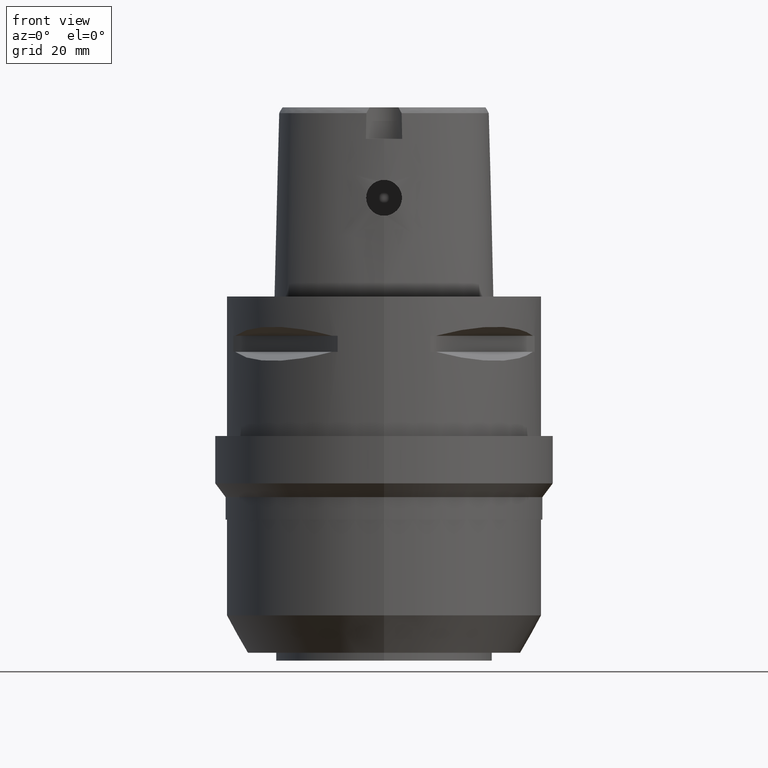
[diagram: clean part render]
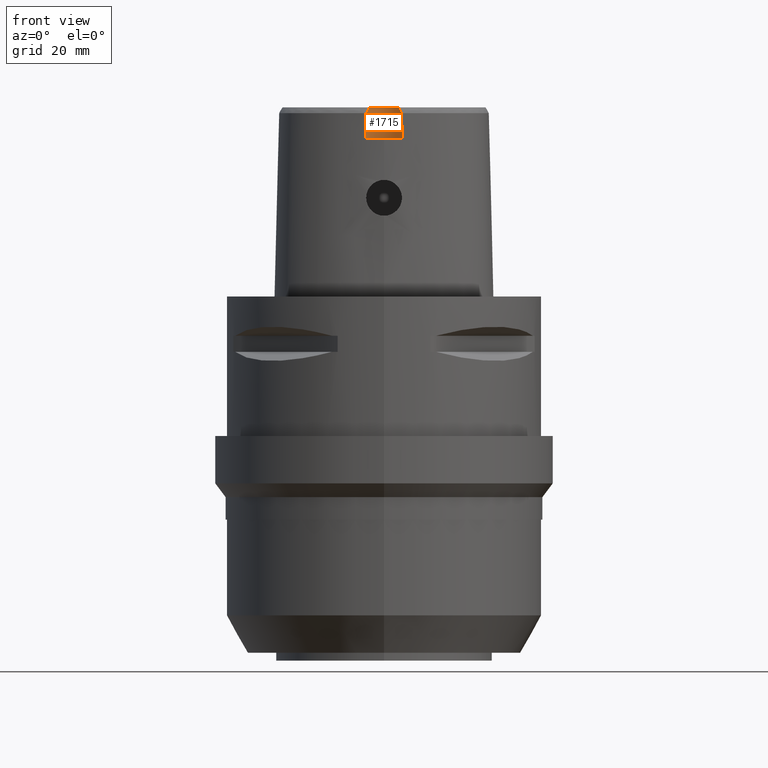
[diagram: same view with one face highlighted and labeled with its STEP entity id]
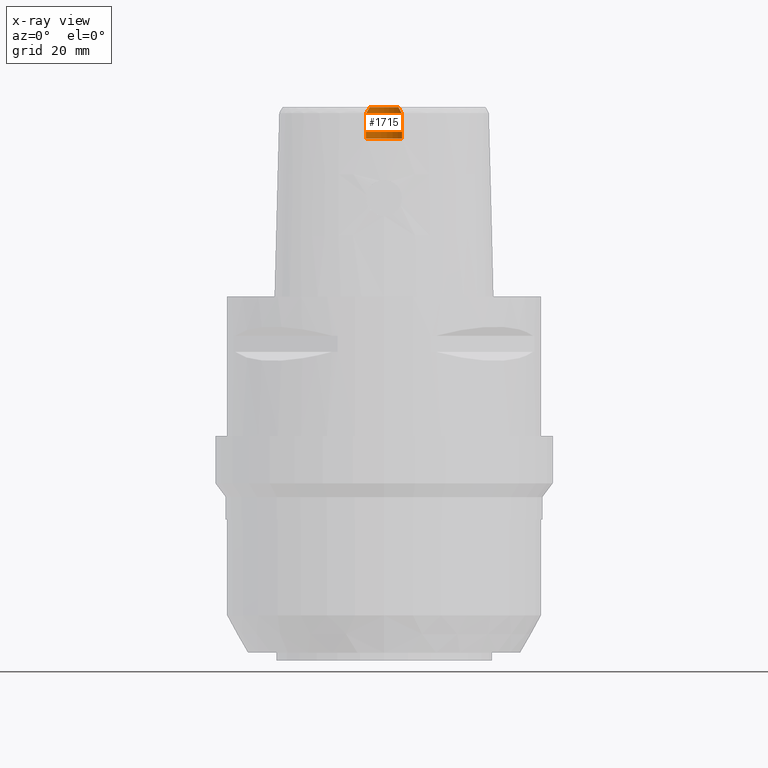
[diagram: x-ray of the same camera — body ghosted, the highlighted face saturated]
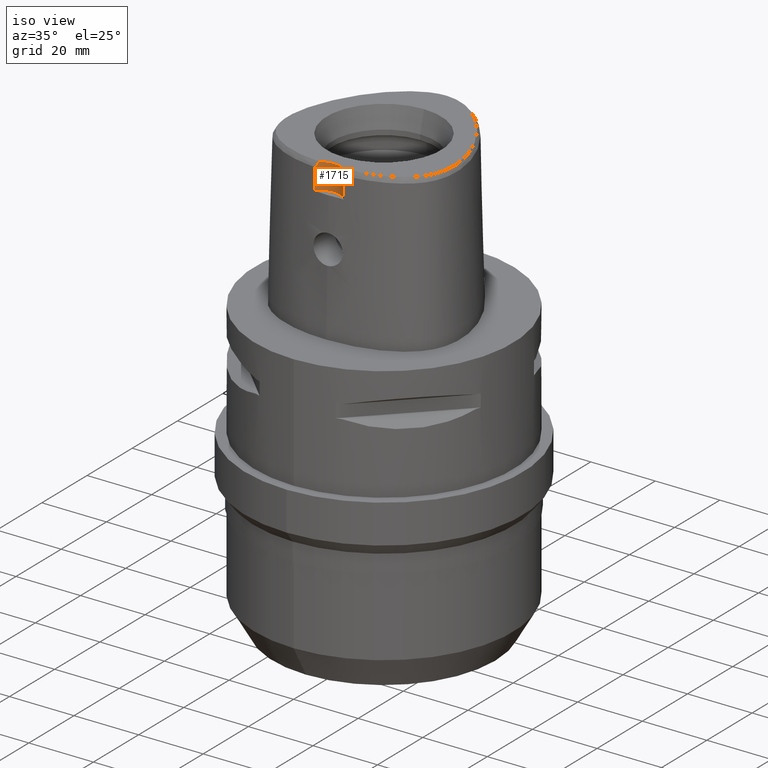
[diagram: same view with one face highlighted and labeled with its STEP entity id]
A machine part, front view. The second image highlights one B-rep face of the part: STEP entity #1715.
The next image is the same camera in x-ray: the body ghosted, the highlighted face saturated — about 0% of this face is hidden behind the body in this view.
A second angle (iso view) of the same face is appended — the face is thin or edge-on in the first view.
In plain terms, the highlighted cylindrical surface (edge-blend (fillet) strip) has radius 6 mm, axis along (0, 0, 1).
Its self-contained STEP definition (entity closure, byte-faithful):
#17=CARTESIAN_POINT('',(0.E0,-2.82E1,4.8E1));
#18=DIRECTION('',(0.E0,0.E0,1.E0));
#19=DIRECTION('',(6.087555377261E-1,7.933578607967E-1,0.E0));
#20=AXIS2_PLACEMENT_3D('',#17,#18,#19);
#132=CARTESIAN_POINT('',(4.472216720977E0,-2.420009030094E1,4.652069014669E1));
#133=CARTESIAN_POINT('',(4.386144032084E0,-2.410385419877E1,4.670633037962E1));
#134=CARTESIAN_POINT('',(4.209928813616E0,-2.391935212205E1,4.706346410461E1));
#135=CARTESIAN_POINT('',(3.936244726635E0,-2.366665749460E1,4.755552516057E1));
#136=CARTESIAN_POINT('',(3.747823734917E0,-2.351297068991E1,4.785647852429E1));
#137=CARTESIAN_POINT('',(3.652533226355E0,-2.343985283522E1,4.8E1));
#187=CARTESIAN_POINT('',(-3.652529789307E0,-2.343985019792E1,4.8E1));
#188=CARTESIAN_POINT('',(-3.751347824120E0,-2.351567466372E1,4.785116975359E1));
#189=CARTESIAN_POINT('',(-3.943820224110E0,-2.367315929358E1,4.754282928433E1));
#190=CARTESIAN_POINT('',(-4.216118105093E0,-2.392558685548E1,4.705138151796E1));
#191=CARTESIAN_POINT('',(-4.388578953909E0,-2.410657655627E1,4.670109638752E1));
#192=CARTESIAN_POINT('',(-4.472216406693E0,-2.420008985674E1,4.652070903171E1));
#249=CARTESIAN_POINT('',(-4.472216406693E0,-2.420008985674E1,4.652070903171E1));
#250=CARTESIAN_POINT('',(-4.487210721186E0,-2.421685468864E1,4.579601479726E1));
#251=CARTESIAN_POINT('',(-4.516393871198E0,-2.424985511122E1,4.434671166025E1));
#252=CARTESIAN_POINT('',(-4.559960929945E0,-2.430022581201E1,4.217314625867E1));
#253=CARTESIAN_POINT('',(-4.588866880071E0,-2.433440429495E1,4.072435065553E1));
#254=CARTESIAN_POINT('',(-4.602926399294E0,-2.435121850033E1,4.E1));
#1013=CARTESIAN_POINT('',(4.602926386879E0,-2.435121850030E1,4.000000005215E1));
#1014=CARTESIAN_POINT('',(4.588866899356E0,-2.433440433283E1,4.072434907413E1));
#1015=CARTESIAN_POINT('',(4.559961035626E0,-2.430022594202E1,4.217314077647E1));
#1016=CARTESIAN_POINT('',(4.516394065040E0,-2.424985529238E1,4.434670381198E1));
#1017=CARTESIAN_POINT('',(4.487210999458E0,-2.421685509515E1,4.579599754735E1));
#1018=CARTESIAN_POINT('',(4.472216720977E0,-2.420009030094E1,4.652069014669E1));
#1050=CARTESIAN_POINT('',(0.E0,-2.82E1,4.E1));
#1051=DIRECTION('',(0.E0,0.E0,-1.E0));
#1052=DIRECTION('',(-7.671609797427E-1,6.414546212791E-1,0.E0));
#1053=AXIS2_PLACEMENT_3D('',#1050,#1051,#1052);
#1510=CARTESIAN_POINT('',(3.652533226356E0,-2.343985283522E1,4.8E1));
#1511=CARTESIAN_POINT('',(-3.652529789305E0,-2.343985019792E1,4.8E1));
#1512=VERTEX_POINT('',#1510);
#1513=VERTEX_POINT('',#1511);
#1519=VERTEX_POINT('',#132);
#1520=VERTEX_POINT('',#1013);
#1521=CARTESIAN_POINT('',(-4.602965878456E0,-2.435127227233E1,4.E1));
#1522=VERTEX_POINT('',#1521);
#1523=VERTEX_POINT('',#249);
#1697=CARTESIAN_POINT('',(0.E0,-2.82E1,4.8E1));
#1698=DIRECTION('',(0.E0,0.E0,1.E0));
#1699=DIRECTION('',(1.E0,0.E0,0.E0));
#1700=AXIS2_PLACEMENT_3D('',#1697,#1698,#1699);
#1701=CYLINDRICAL_SURFACE('',#1700,6.E0);
#1702=ORIENTED_EDGE('',*,*,#1682,.F.);
#1704=ORIENTED_EDGE('',*,*,#1703,.F.);
#1706=ORIENTED_EDGE('',*,*,#1705,.F.);
#1708=ORIENTED_EDGE('',*,*,#1707,.F.);
#1710=ORIENTED_EDGE('',*,*,#1709,.F.);
#1712=ORIENTED_EDGE('',*,*,#1711,.F.);
#1713=EDGE_LOOP('',(#1702,#1704,#1706,#1708,#1710,#1712));
#1714=FACE_OUTER_BOUND('',#1713,.F.);
#21=CIRCLE('',#20,6.E0);
#138=B_SPLINE_CURVE_WITH_KNOTS('',3,(#132,#133,#134,#135,#136,#137),
.UNSPECIFIED.,.F.,.F.,(4,1,1,4),(0.E0,3.333333333333E-1,6.666666666667E-1,1.E0),
.UNSPECIFIED.);
#193=B_SPLINE_CURVE_WITH_KNOTS('',3,(#187,#188,#189,#190,#191,#192),
.UNSPECIFIED.,.F.,.F.,(4,1,1,4),(0.E0,3.333333333333E-1,6.666666666667E-1,1.E0),
.UNSPECIFIED.);
#255=B_SPLINE_CURVE_WITH_KNOTS('',3,(#249,#250,#251,#252,#253,#254),
.UNSPECIFIED.,.F.,.F.,(4,1,1,4),(0.E0,3.333333333333E-1,6.666666666667E-1,1.E0),
.UNSPECIFIED.);
#1019=B_SPLINE_CURVE_WITH_KNOTS('',3,(#1013,#1014,#1015,#1016,#1017,#1018),
.UNSPECIFIED.,.F.,.F.,(4,1,1,4),(0.E0,3.333333333333E-1,6.666666666667E-1,1.E0),
.UNSPECIFIED.);
#1054=CIRCLE('',#1053,6.E0);
#1682=EDGE_CURVE('',#1512,#1513,#21,.T.);
#1703=EDGE_CURVE('',#1519,#1512,#138,.T.);
#1705=EDGE_CURVE('',#1520,#1519,#1019,.T.);
#1707=EDGE_CURVE('',#1522,#1520,#1054,.T.);
#1709=EDGE_CURVE('',#1523,#1522,#255,.T.);
#1711=EDGE_CURVE('',#1513,#1523,#193,.T.);
#1715=ADVANCED_FACE('',(#1714),#1701,.F.);